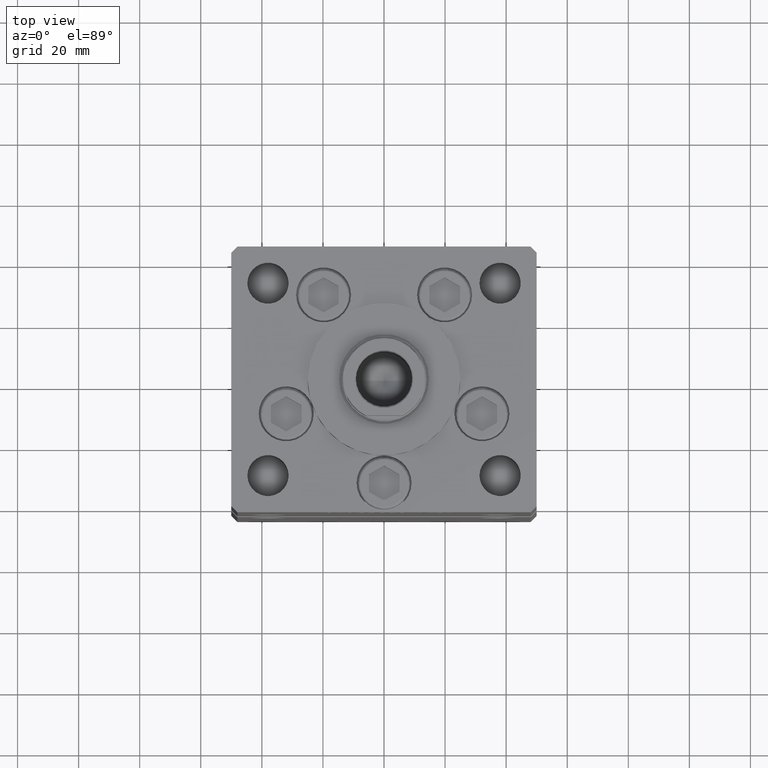
[diagram: clean part render]
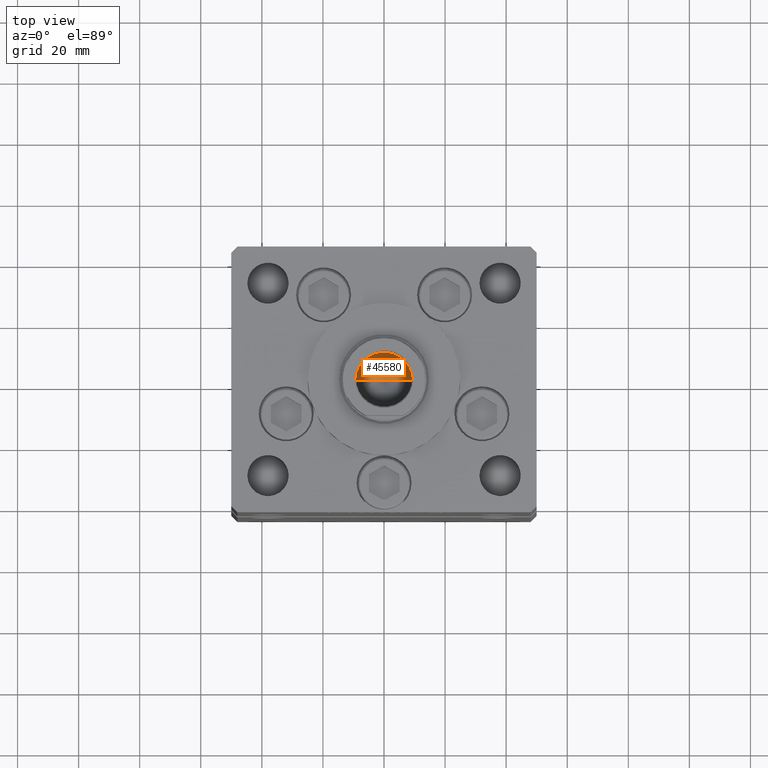
[diagram: same view with one face highlighted and labeled with its STEP entity id]
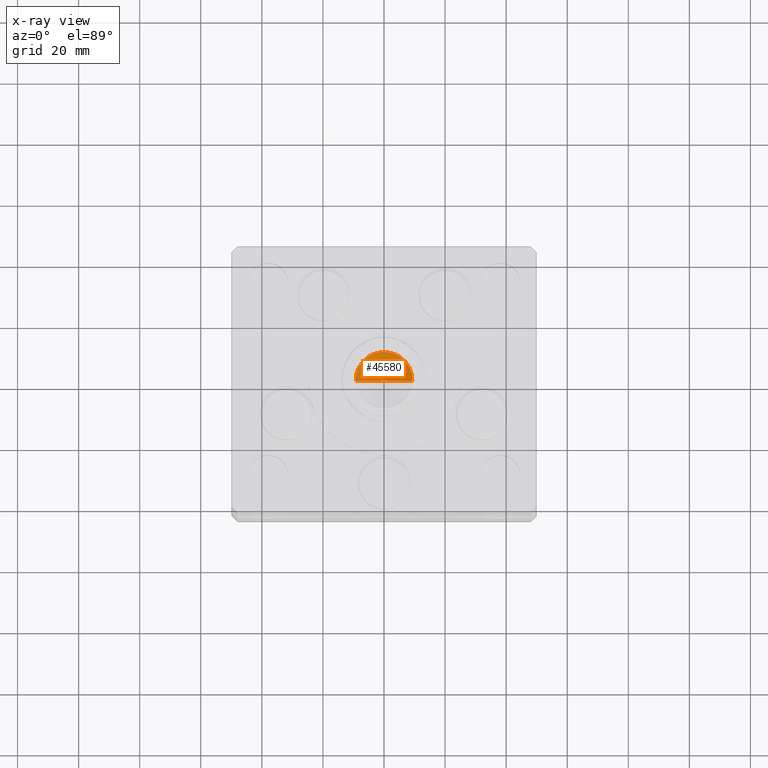
[diagram: x-ray of the same camera — body ghosted, the highlighted face saturated]
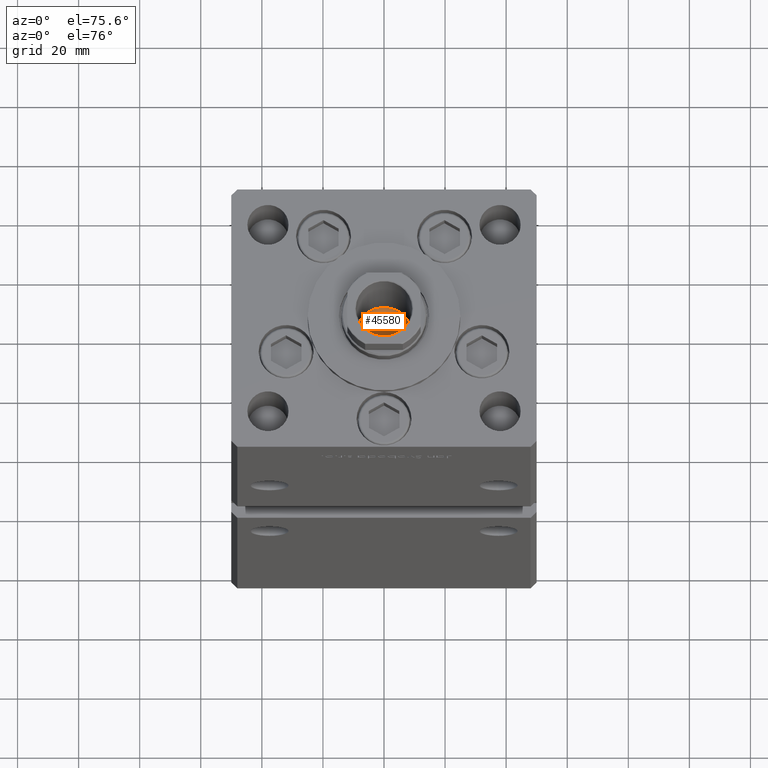
[diagram: same view with one face highlighted and labeled with its STEP entity id]
A machine part, top view. The second image highlights one B-rep face of the part: STEP entity #45580.
The next image is the same camera in x-ray: the body ghosted, the highlighted face saturated — about 0% of this face is hidden behind the body in this view.
A second angle (auxiliary view) of the same face is appended — the face is thin or edge-on in the first view.
In plain terms, the highlighted conical surface has half-angle 59 deg.
Its self-contained STEP definition (entity closure, byte-faithful):
#1217 = AXIS2_PLACEMENT_3D ( 'NONE', #12841, #49982, #16880 ) ;
#2305 = VERTEX_POINT ( 'NONE', #3290 ) ;
#3290 = CARTESIAN_POINT ( 'NONE',  ( -1.046994375366439223E-14, 0.000000000000000000, 124.6920392739950643 ) ) ;
#9813 = CIRCLE ( 'NONE', #1217, 9.249999999999994671 ) ;
#10768 = EDGE_LOOP ( 'NONE', ( #11941, #45795, #17956 ) ) ;
#11941 = ORIENTED_EDGE ( 'NONE', *, *, #12657, .F. ) ;
#12044 = VERTEX_POINT ( 'NONE', #13889 ) ;
#12657 = EDGE_CURVE ( 'NONE', #2305, #12044, #34410, .T. ) ;
#12841 = CARTESIAN_POINT ( 'NONE',  ( 0.000000000000000000, 0.000000000000000000, 130.2500000000000000 ) ) ;
#13582 = CARTESIAN_POINT ( 'NONE',  ( 9.249999999999994671, 0.000000000000000000, 130.2500000000000000 ) ) ;
#13889 = CARTESIAN_POINT ( 'NONE',  ( -9.249999999999994671, 1.132798289211300909E-15, 130.2500000000000000 ) ) ;
#16880 = DIRECTION ( 'NONE',  ( 1.000000000000000000, 0.000000000000000000, 0.000000000000000000 ) ) ;
#17956 = ORIENTED_EDGE ( 'NONE', *, *, #28769, .T. ) ;
#22826 = CARTESIAN_POINT ( 'NONE',  ( -9.249999999999994671, 1.132798289211300909E-15, 130.2500000000000000 ) ) ;
#23478 = CARTESIAN_POINT ( 'NONE',  ( 0.000000000000000000, 0.000000000000000000, 130.2500000000000000 ) ) ;
#25431 = DIRECTION ( 'NONE',  ( 0.8571673007021117785, 0.000000000000000000, 0.5150380749100550437 ) ) ;
#28769 = EDGE_CURVE ( 'NONE', #38675, #12044, #9813, .T. ) ;
#30006 = LINE ( 'NONE', #13582, #45911 ) ;
#31167 = DIRECTION ( 'NONE',  ( -0.8571673007021117785, 1.049727191138617956E-16, 0.5150380749100550437 ) ) ;
#32392 = CARTESIAN_POINT ( 'NONE',  ( 9.249999999999994671, 0.000000000000000000, 130.2500000000000000 ) ) ;
#34410 = LINE ( 'NONE', #22826, #43870 ) ;
#36126 = DIRECTION ( 'NONE',  ( -0.000000000000000000, -0.000000000000000000, 1.000000000000000000 ) ) ;
#36658 = DIRECTION ( 'NONE',  ( 1.000000000000000000, 0.000000000000000000, 0.000000000000000000 ) ) ;
#37235 = AXIS2_PLACEMENT_3D ( 'NONE', #23478, #36126, #36658 ) ;
#38675 = VERTEX_POINT ( 'NONE', #32392 ) ;
#43870 = VECTOR ( 'NONE', #31167, 1000.000000000000000 ) ;
#44742 = FACE_OUTER_BOUND ( 'NONE', #10768, .T. ) ;
#45580 = ADVANCED_FACE ( 'NONE', ( #44742 ), #50008, .F. ) ;
#45795 = ORIENTED_EDGE ( 'NONE', *, *, #50550, .T. ) ;
#45911 = VECTOR ( 'NONE', #25431, 1000.000000000000000 ) ;
#49982 = DIRECTION ( 'NONE',  ( -0.000000000000000000, -0.000000000000000000, 1.000000000000000000 ) ) ;
#50008 = CONICAL_SURFACE ( 'NONE', #37235, 9.249999999999994671, 1.029744258676653423 ) ;
#50550 = EDGE_CURVE ( 'NONE', #2305, #38675, #30006, .T. ) ;